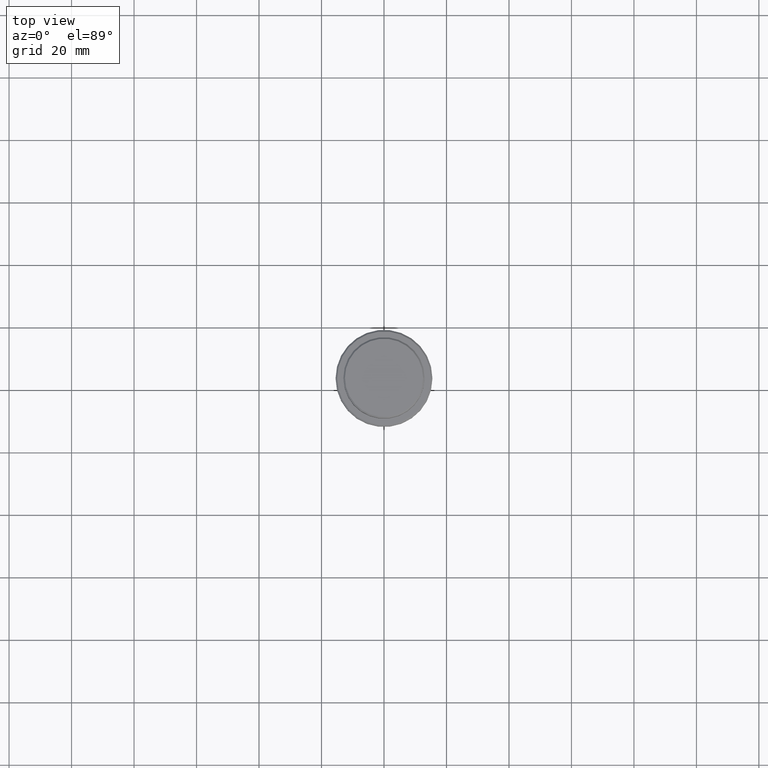
[diagram: clean part render]
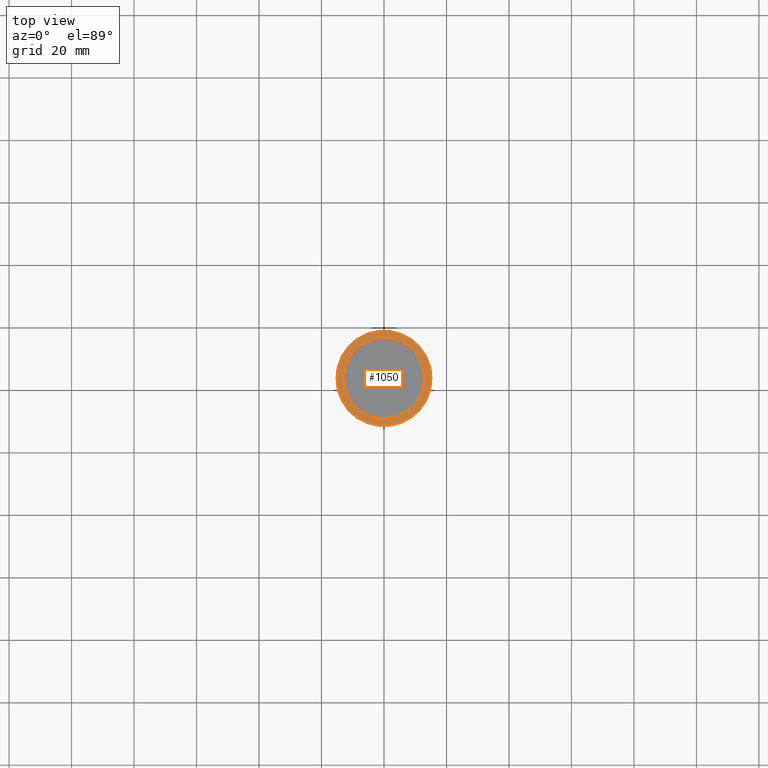
[diagram: same view with one face highlighted and labeled with its STEP entity id]
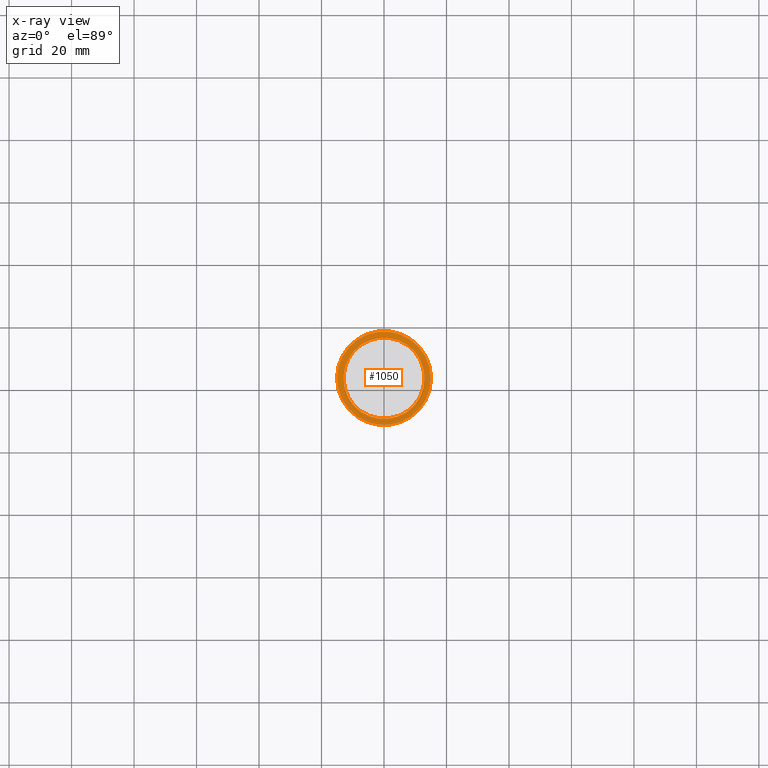
[diagram: x-ray of the same camera — body ghosted, the highlighted face saturated]
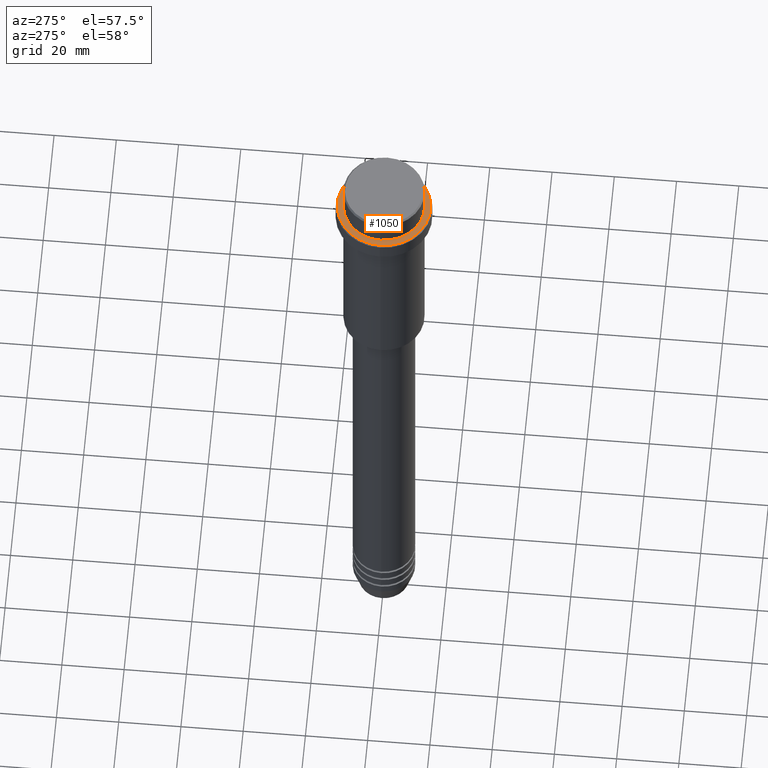
[diagram: same view with one face highlighted and labeled with its STEP entity id]
A machine part, top view. The second image highlights one B-rep face of the part: STEP entity #1050.
The next image is the same camera in x-ray: the body ghosted, the highlighted face saturated — about 0% of this face is hidden behind the body in this view.
A second angle (auxiliary view) of the same face is appended — the face is thin or edge-on in the first view.
In plain terms, the highlighted planar face has unit normal (0, -0, 1).
Its self-contained STEP definition (entity closure, byte-faithful):
#46 = CARTESIAN_POINT ( 'NONE',  ( 0.000000000000000000, 0.000000000000000000, -9.000000000000001776 ) ) ;
#53 = DIRECTION ( 'NONE',  ( -0.000000000000000000, -0.000000000000000000, 1.000000000000000000 ) ) ;
#54 = EDGE_LOOP ( 'NONE', ( #681, #614 ) ) ;
#74 = CARTESIAN_POINT ( 'NONE',  ( 0.000000000000000000, 0.000000000000000000, -9.000000000000001776 ) ) ;
#146 = DIRECTION ( 'NONE',  ( 1.000000000000000000, 0.000000000000000000, 0.000000000000000000 ) ) ;
#155 = CARTESIAN_POINT ( 'NONE',  ( 0.000000000000000000, 12.49999999999999289, -9.000000000000001776 ) ) ;
#234 = CARTESIAN_POINT ( 'NONE',  ( 15.00000000000006928, 1.867586368699718109E-15, -9.000000000000001776 ) ) ;
#272 = CIRCLE ( 'NONE', #1080, 12.99999999999999467 ) ;
#288 = DIRECTION ( 'NONE',  ( 1.000000000000000000, 0.000000000000000000, 0.000000000000000000 ) ) ;
#350 = EDGE_CURVE ( 'NONE', #1246, #547, #593, .T. ) ;
#392 = CIRCLE ( 'NONE', #1210, 15.00000000000006928 ) ;
#394 = DIRECTION ( 'NONE',  ( 1.000000000000000000, 0.000000000000000000, 0.000000000000000000 ) ) ;
#473 = PLANE ( 'NONE',  #1023 ) ;
#494 = CARTESIAN_POINT ( 'NONE',  ( -12.99999999999999467, 1.592040838891558504E-15, -9.000000000000001776 ) ) ;
#547 = VERTEX_POINT ( 'NONE', #1170 ) ;
#562 = DIRECTION ( 'NONE',  ( 1.000000000000000000, 0.000000000000000000, 0.000000000000000000 ) ) ;
#590 = DIRECTION ( 'NONE',  ( 1.000000000000000000, 0.000000000000000000, 0.000000000000000000 ) ) ;
#592 = ORIENTED_EDGE ( 'NONE', *, *, #792, .T. ) ;
#593 = CIRCLE ( 'NONE', #1377, 15.00000000000006928 ) ;
#610 = EDGE_CURVE ( 'NONE', #1273, #977, #804, .T. ) ;
#614 = ORIENTED_EDGE ( 'NONE', *, *, #350, .T. ) ;
#675 = CARTESIAN_POINT ( 'NONE',  ( 12.99999999999999467, 0.000000000000000000, -9.000000000000001776 ) ) ;
#681 = ORIENTED_EDGE ( 'NONE', *, *, #1383, .T. ) ;
#792 = EDGE_CURVE ( 'NONE', #977, #1273, #272, .T. ) ;
#804 = CIRCLE ( 'NONE', #1333, 12.99999999999999467 ) ;
#823 = DIRECTION ( 'NONE',  ( -0.000000000000000000, -0.000000000000000000, 1.000000000000000000 ) ) ;
#891 = DIRECTION ( 'NONE',  ( 0.000000000000000000, 0.000000000000000000, -1.000000000000000000 ) ) ;
#926 = DIRECTION ( 'NONE',  ( 0.000000000000000000, -0.000000000000000000, 1.000000000000000000 ) ) ;
#960 = ORIENTED_EDGE ( 'NONE', *, *, #610, .T. ) ;
#977 = VERTEX_POINT ( 'NONE', #494 ) ;
#1023 = AXIS2_PLACEMENT_3D ( 'NONE', #155, #926, #590 ) ;
#1039 = FACE_OUTER_BOUND ( 'NONE', #54, .T. ) ;
#1050 = ADVANCED_FACE ( 'NONE', ( #1039, #1146 ), #473, .T. ) ;
#1080 = AXIS2_PLACEMENT_3D ( 'NONE', #1214, #891, #562 ) ;
#1103 = EDGE_LOOP ( 'NONE', ( #960, #592 ) ) ;
#1146 = FACE_BOUND ( 'NONE', #1103, .T. ) ;
#1170 = CARTESIAN_POINT ( 'NONE',  ( -15.00000000000006928, 0.000000000000000000, -9.000000000000001776 ) ) ;
#1210 = AXIS2_PLACEMENT_3D ( 'NONE', #46, #53, #146 ) ;
#1214 = CARTESIAN_POINT ( 'NONE',  ( 0.000000000000000000, 0.000000000000000000, -9.000000000000001776 ) ) ;
#1246 = VERTEX_POINT ( 'NONE', #234 ) ;
#1273 = VERTEX_POINT ( 'NONE', #675 ) ;
#1284 = DIRECTION ( 'NONE',  ( 0.000000000000000000, 0.000000000000000000, -1.000000000000000000 ) ) ;
#1333 = AXIS2_PLACEMENT_3D ( 'NONE', #74, #1284, #288 ) ;
#1367 = CARTESIAN_POINT ( 'NONE',  ( 0.000000000000000000, 0.000000000000000000, -9.000000000000001776 ) ) ;
#1377 = AXIS2_PLACEMENT_3D ( 'NONE', #1367, #823, #394 ) ;
#1383 = EDGE_CURVE ( 'NONE', #547, #1246, #392, .T. ) ;